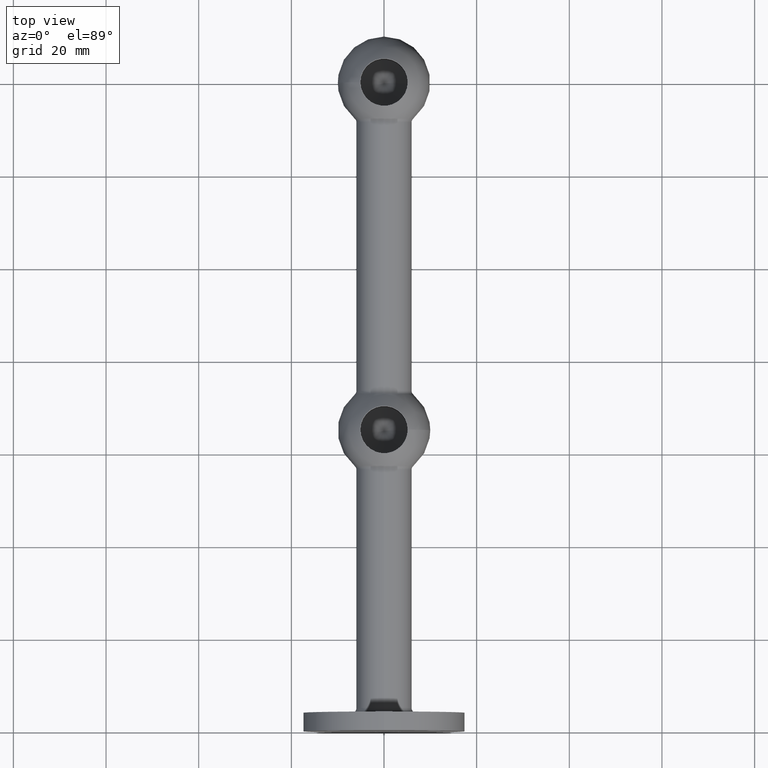
[diagram: clean part render]
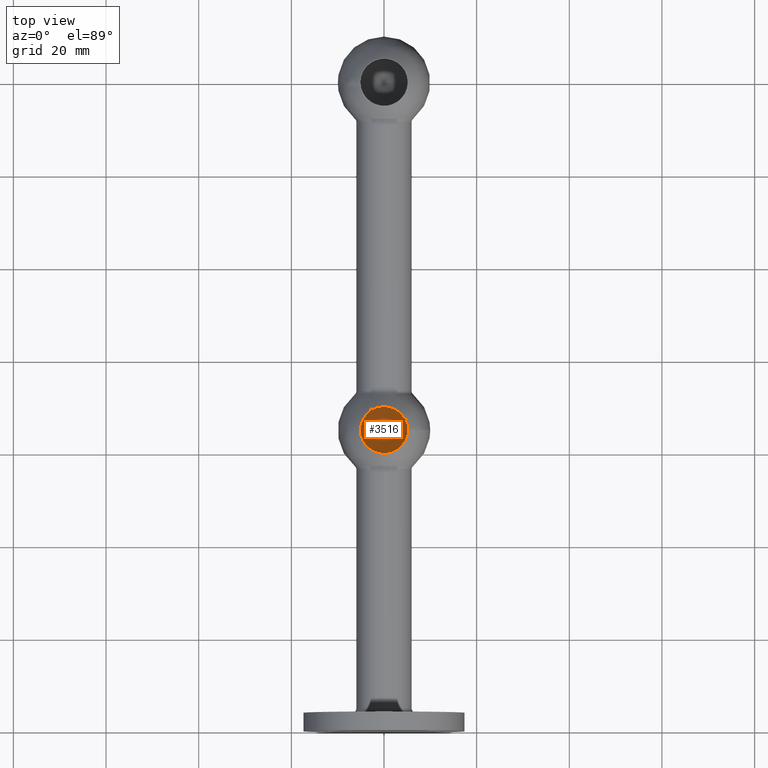
[diagram: same view with one face highlighted and labeled with its STEP entity id]
A machine part, top view. The second image highlights one B-rep face of the part: STEP entity #3516.
In plain terms, the highlighted conical surface has half-angle 59 deg.
Its self-contained STEP definition (entity closure, byte-faithful):
#1402 = VERTEX_POINT ( 'NONE', #8428 ) ;
#2142 = CIRCLE ( 'NONE', #4355, 5.099999999999980105 ) ;
#2737 = DIRECTION ( 'NONE',  ( -0.000000000000000000, -0.000000000000000000, 1.000000000000000000 ) ) ;
#3516 = ADVANCED_FACE ( 'NONE', ( #9134 ), #5633, .F. ) ;
#3912 = CARTESIAN_POINT ( 'NONE',  ( -4.898587196589417759E-16, 65.00000000000000000, -2.000000000000011990 ) ) ;
#4270 = AXIS2_PLACEMENT_3D ( 'NONE', #3912, #11614, #5722 ) ;
#4355 = AXIS2_PLACEMENT_3D ( 'NONE', #5639, #2737, #12480 ) ;
#5603 = ORIENTED_EDGE ( 'NONE', *, *, #5735, .T. ) ;
#5633 = CONICAL_SURFACE ( 'NONE', #4270, 5.099999999999980105, 1.029744258676653645 ) ;
#5639 = CARTESIAN_POINT ( 'NONE',  ( -4.898587196589417759E-16, 65.00000000000000000, -2.000000000000011990 ) ) ;
#5722 = DIRECTION ( 'NONE',  ( 1.000000000000000000, 0.000000000000000000, 0.000000000000000000 ) ) ;
#5735 = EDGE_CURVE ( 'NONE', #1402, #1402, #2142, .T. ) ;
#8428 = CARTESIAN_POINT ( 'NONE',  ( 5.099999999999979217, 65.00000000000000000, -2.000000000000011990 ) ) ;
#9025 = EDGE_LOOP ( 'NONE', ( #5603 ) ) ;
#9134 = FACE_OUTER_BOUND ( 'NONE', #9025, .T. ) ;
#11614 = DIRECTION ( 'NONE',  ( -0.000000000000000000, -0.000000000000000000, 1.000000000000000000 ) ) ;
#12480 = DIRECTION ( 'NONE',  ( 1.000000000000000000, 0.000000000000000000, 0.000000000000000000 ) ) ;